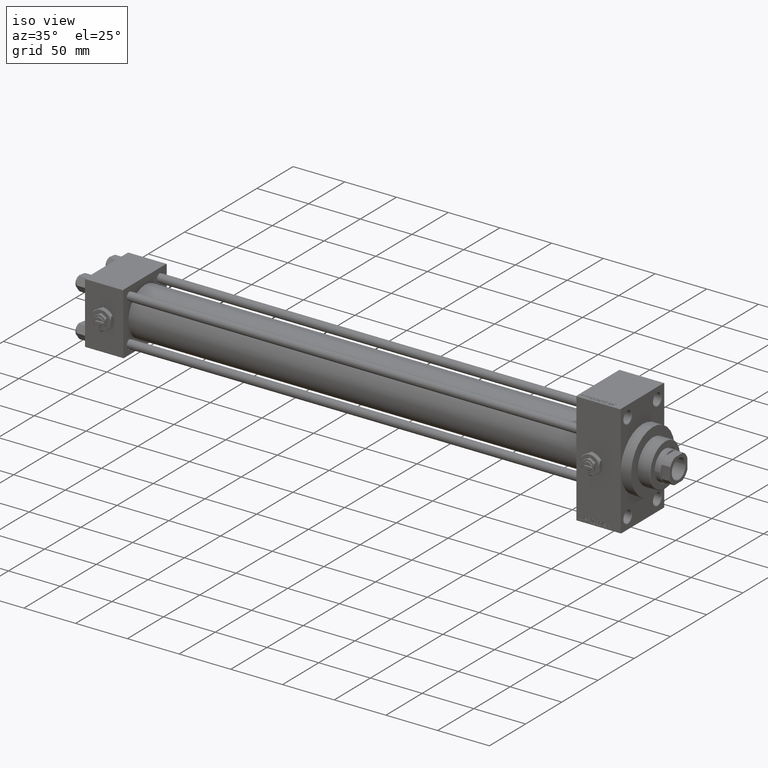
[diagram: clean part render]
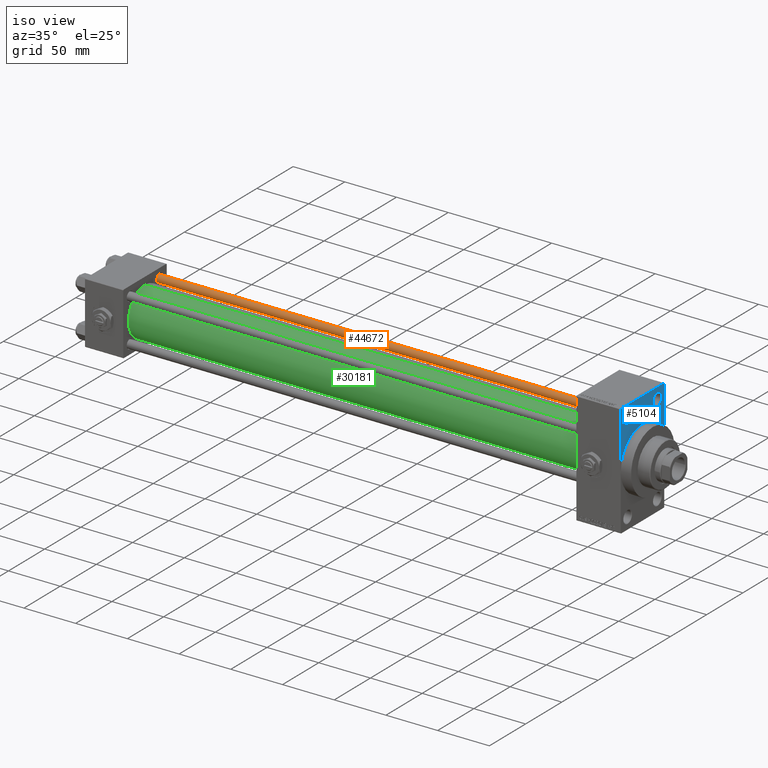
[diagram: same view with three faces highlighted in distinct colors, each labeled with its STEP entity id]
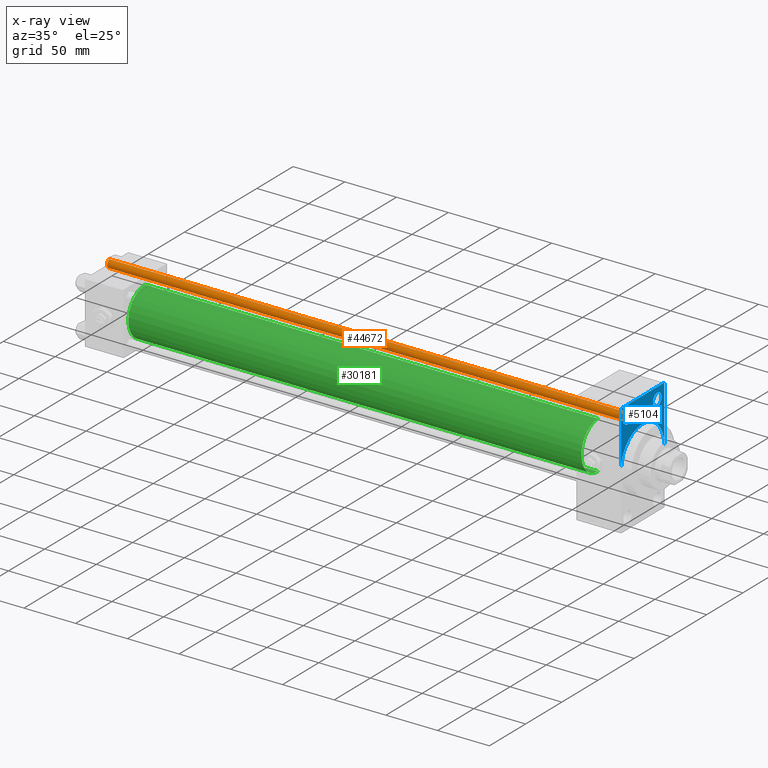
[diagram: x-ray of the same camera — body ghosted, the three highlighted faces saturated]
A machine part, iso view with three faces highlighted in distinct colors.
The next image is the same camera in x-ray (body ghosted, the three faces saturated) — at least one of them is partly hidden behind the body in this view.
Their STEP definitions:

[orange] entity #44672 — the highlighted cylindrical surface (edge-blend (fillet) strip) has radius 4 mm, axis along (-1, -0, 0).
#453 = CARTESIAN_POINT ( 'NONE',  ( 0.000000000000000000, 0.000000000000000000, 501.4999999999999432 ) ) ;
#1155 = ORIENTED_EDGE ( 'NONE', *, *, #11094, .F. ) ;
#3367 = ORIENTED_EDGE ( 'NONE', *, *, #47779, .T. ) ;
#4430 = ORIENTED_EDGE ( 'NONE', *, *, #23448, .T. ) ;
#5130 = CIRCLE ( 'NONE', #18663, 4.000000000000000000 ) ;
#5184 = FACE_OUTER_BOUND ( 'NONE', #46292, .T. ) ;
#8181 = CARTESIAN_POINT ( 'NONE',  ( 0.000000000000000000, 0.000000000000000000, 0.4999999999999449329 ) ) ;
#10677 = VECTOR ( 'NONE', #45670, 1000.000000000000000 ) ;
#11094 = EDGE_CURVE ( 'NONE', #16995, #34132, #33963, .T. ) ;
#13772 = CARTESIAN_POINT ( 'NONE',  ( -4.000000000000000000, 0.000000000000000000, 501.4999999999999432 ) ) ;
#16173 = CARTESIAN_POINT ( 'NONE',  ( 0.000000000000000000, 0.000000000000000000, 502.0000000000000000 ) ) ;
#16901 = CYLINDRICAL_SURFACE ( 'NONE', #36772, 4.000000000000000000 ) ;
#16995 = VERTEX_POINT ( 'NONE', #27229 ) ;
#17477 = CARTESIAN_POINT ( 'NONE',  ( 4.000000000000000000, 4.898587196589412829E-16, 0.4999999999999449329 ) ) ;
#18045 = VERTEX_POINT ( 'NONE', #13772 ) ;
#18372 = CARTESIAN_POINT ( 'NONE',  ( -4.000000000000000000, 0.000000000000000000, 0.4999999999999449329 ) ) ;
#18663 = AXIS2_PLACEMENT_3D ( 'NONE', #8181, #46049, #49049 ) ;
#22649 = DIRECTION ( 'NONE',  ( 0.000000000000000000, 0.000000000000000000, -1.000000000000000000 ) ) ;
#22982 = CARTESIAN_POINT ( 'NONE',  ( -4.000000000000000000, 0.000000000000000000, 502.0000000000000000 ) ) ;
#23448 = EDGE_CURVE ( 'NONE', #16995, #18045, #41836, .T. ) ;
#23888 = DIRECTION ( 'NONE',  ( -1.000000000000000000, 0.000000000000000000, 0.000000000000000000 ) ) ;
#25994 = LINE ( 'NONE', #22982, #31354 ) ;
#26974 = CARTESIAN_POINT ( 'NONE',  ( 4.000000000000000000, 4.898587196589412829E-16, 502.0000000000000000 ) ) ;
#27229 = CARTESIAN_POINT ( 'NONE',  ( 4.000000000000000000, 4.898587196589412829E-16, 501.4999999999999432 ) ) ;
#27486 = AXIS2_PLACEMENT_3D ( 'NONE', #453, #22649, #45326 ) ;
#31354 = VECTOR ( 'NONE', #38177, 1000.000000000000000 ) ;
#31748 = ORIENTED_EDGE ( 'NONE', *, *, #46112, .T. ) ;
#33963 = LINE ( 'NONE', #26974, #10677 ) ;
#34132 = VERTEX_POINT ( 'NONE', #17477 ) ;
#35590 = DIRECTION ( 'NONE',  ( -0.000000000000000000, -0.000000000000000000, -1.000000000000000000 ) ) ;
#36772 = AXIS2_PLACEMENT_3D ( 'NONE', #16173, #35590, #23888 ) ;
#38177 = DIRECTION ( 'NONE',  ( -0.000000000000000000, -0.000000000000000000, -1.000000000000000000 ) ) ;
#39154 = VERTEX_POINT ( 'NONE', #18372 ) ;
#41836 = CIRCLE ( 'NONE', #27486, 4.000000000000000000 ) ;
#44672 = ADVANCED_FACE ( 'NONE', ( #5184 ), #16901, .T. ) ;
#45326 = DIRECTION ( 'NONE',  ( 1.000000000000000000, 0.000000000000000000, 0.000000000000000000 ) ) ;
#45670 = DIRECTION ( 'NONE',  ( -0.000000000000000000, -0.000000000000000000, -1.000000000000000000 ) ) ;
#46049 = DIRECTION ( 'NONE',  ( -0.000000000000000000, -0.000000000000000000, 1.000000000000000000 ) ) ;
#46112 = EDGE_CURVE ( 'NONE', #18045, #39154, #25994, .T. ) ;
#46292 = EDGE_LOOP ( 'NONE', ( #1155, #4430, #31748, #3367 ) ) ;
#47779 = EDGE_CURVE ( 'NONE', #39154, #34132, #5130, .T. ) ;
#49049 = DIRECTION ( 'NONE',  ( 1.000000000000000000, 0.000000000000000000, 0.000000000000000000 ) ) ;

[blue] entity #5104 — the highlighted planar face has unit normal (-1, 0, 0).
#154 = DIRECTION ( 'NONE',  ( 0.000000000000000000, 0.000000000000000000, 1.000000000000000000 ) ) ;
#936 = DIRECTION ( 'NONE',  ( -1.000000000000000000, 0.000000000000000000, -0.000000000000000000 ) ) ;
#1030 = ORIENTED_EDGE ( 'NONE', *, *, #7105, .T. ) ;
#2245 = VERTEX_POINT ( 'NONE', #28666 ) ;
#2514 = CARTESIAN_POINT ( 'NONE',  ( 518.0000000000000000, -30.00000000000000000, 0.000000000000000000 ) ) ;
#3067 = VERTEX_POINT ( 'NONE', #13725 ) ;
#3077 = CARTESIAN_POINT ( 'NONE',  ( 518.0000000000000000, 29.99999999999999645, 54.49999999999999289 ) ) ;
#4241 = VERTEX_POINT ( 'NONE', #35560 ) ;
#4811 = AXIS2_PLACEMENT_3D ( 'NONE', #7801, #10810, #30465 ) ;
#5104 = ADVANCED_FACE ( 'NONE', ( #11672, #42071, #26868 ), #23381, .F. ) ;
#5264 = LINE ( 'NONE', #43132, #7505 ) ;
#5436 = ORIENTED_EDGE ( 'NONE', *, *, #45401, .T. ) ;
#5440 = LINE ( 'NONE', #47300, #28835 ) ;
#5602 = LINE ( 'NONE', #20799, #17931 ) ;
#6318 = CARTESIAN_POINT ( 'NONE',  ( 518.0000000000000000, 29.99999999999999645, 53.99999999999999289 ) ) ;
#7105 = EDGE_CURVE ( 'NONE', #34220, #33696, #13838, .T. ) ;
#7426 = EDGE_CURVE ( 'NONE', #36538, #4241, #33712, .T. ) ;
#7505 = VECTOR ( 'NONE', #20948, 1000.000000000000000 ) ;
#7801 = CARTESIAN_POINT ( 'NONE',  ( 518.0000000000000000, -20.50000000000000000, 43.50000000000000000 ) ) ;
#7917 = EDGE_LOOP ( 'NONE', ( #1030, #37943 ) ) ;
#7935 = DIRECTION ( 'NONE',  ( -1.000000000000000000, 0.000000000000000000, -0.000000000000000000 ) ) ;
#8124 = CARTESIAN_POINT ( 'NONE',  ( 518.0000000000000000, 29.49999999999993960, 54.49999999999999289 ) ) ;
#9437 = ORIENTED_EDGE ( 'NONE', *, *, #28456, .T. ) ;
#9944 = ORIENTED_EDGE ( 'NONE', *, *, #7426, .T. ) ;
#10645 = AXIS2_PLACEMENT_3D ( 'NONE', #39571, #936, #46549 ) ;
#10810 = DIRECTION ( 'NONE',  ( -1.000000000000000000, 0.000000000000000000, -0.000000000000000000 ) ) ;
#11632 = VECTOR ( 'NONE', #32493, 1000.000000000000000 ) ;
#11672 = FACE_BOUND ( 'NONE', #7917, .T. ) ;
#12228 = AXIS2_PLACEMENT_3D ( 'NONE', #32027, #21049, #20800 ) ;
#12352 = EDGE_CURVE ( 'NONE', #33825, #3067, #5264, .T. ) ;
#13204 = DIRECTION ( 'NONE',  ( 0.000000000000000000, 0.000000000000000000, -1.000000000000000000 ) ) ;
#13277 = AXIS2_PLACEMENT_3D ( 'NONE', #45769, #41787, #154 ) ;
#13619 = ORIENTED_EDGE ( 'NONE', *, *, #26449, .T. ) ;
#13725 = CARTESIAN_POINT ( 'NONE',  ( 518.0000000000000000, 30.00000000000000000, 0.000000000000000000 ) ) ;
#13838 = CIRCLE ( 'NONE', #10645, 5.999999999999950262 ) ;
#14866 = VECTOR ( 'NONE', #46001, 1000.000000000000000 ) ;
#15071 = DIRECTION ( 'NONE',  ( 0.000000000000000000, 0.000000000000000000, -1.000000000000000000 ) ) ;
#15665 = ORIENTED_EDGE ( 'NONE', *, *, #37235, .F. ) ;
#16208 = CARTESIAN_POINT ( 'NONE',  ( 518.0000000000000000, 0.000000000000000000, 0.000000000000000000 ) ) ;
#17306 = LINE ( 'NONE', #3077, #11632 ) ;
#17621 = EDGE_CURVE ( 'NONE', #33825, #22488, #23327, .T. ) ;
#17931 = VECTOR ( 'NONE', #28778, 1000.000000000000000 ) ;
#20799 = CARTESIAN_POINT ( 'NONE',  ( 518.0000000000000000, -30.00000000000000000, 54.00000000000000000 ) ) ;
#20800 = DIRECTION ( 'NONE',  ( 0.000000000000000000, 0.000000000000000000, 1.000000000000000000 ) ) ;
#20948 = DIRECTION ( 'NONE',  ( 0.000000000000000000, 0.000000000000000000, -1.000000000000000000 ) ) ;
#21049 = DIRECTION ( 'NONE',  ( -1.000000000000000000, 0.000000000000000000, -0.000000000000000000 ) ) ;
#21131 = DIRECTION ( 'NONE',  ( 0.000000000000000000, 0.000000000000000000, -1.000000000000000000 ) ) ;
#22488 = VERTEX_POINT ( 'NONE', #28648 ) ;
#23119 = CIRCLE ( 'NONE', #26320, 30.00000000000000000 ) ;
#23327 = LINE ( 'NONE', #8124, #14866 ) ;
#23381 = PLANE ( 'NONE',  #24075 ) ;
#23868 = AXIS2_PLACEMENT_3D ( 'NONE', #29795, #34009, #15071 ) ;
#24075 = AXIS2_PLACEMENT_3D ( 'NONE', #48804, #7935, #38332 ) ;
#24696 = CARTESIAN_POINT ( 'NONE',  ( 518.0000000000000000, -29.49999999999994671, 54.50000000000000000 ) ) ;
#26320 = AXIS2_PLACEMENT_3D ( 'NONE', #16208, #35868, #13204 ) ;
#26449 = EDGE_CURVE ( 'NONE', #4241, #36538, #34757, .T. ) ;
#26868 = FACE_OUTER_BOUND ( 'NONE', #38090, .T. ) ;
#28456 = EDGE_CURVE ( 'NONE', #22488, #34017, #17306, .T. ) ;
#28648 = CARTESIAN_POINT ( 'NONE',  ( 518.0000000000000000, 29.49999999999993960, 54.49999999999999289 ) ) ;
#28666 = CARTESIAN_POINT ( 'NONE',  ( 518.0000000000000000, -30.00000000000000000, 54.00000000000000000 ) ) ;
#28778 = DIRECTION ( 'NONE',  ( -0.000000000000000000, -0.7071067811865843211, -0.7071067811865108244 ) ) ;
#28835 = VECTOR ( 'NONE', #21131, 1000.000000000000000 ) ;
#29795 = CARTESIAN_POINT ( 'NONE',  ( 518.0000000000000000, 0.000000000000000000, 0.000000000000000000 ) ) ;
#29970 = CARTESIAN_POINT ( 'NONE',  ( 518.0000000000000000, 20.50000000000000000, 37.50000000000004974 ) ) ;
#30465 = DIRECTION ( 'NONE',  ( 0.000000000000000000, 0.000000000000000000, 1.000000000000000000 ) ) ;
#32027 = CARTESIAN_POINT ( 'NONE',  ( 518.0000000000000000, 20.50000000000000000, 43.50000000000000000 ) ) ;
#32153 = EDGE_LOOP ( 'NONE', ( #9944, #13619 ) ) ;
#32493 = DIRECTION ( 'NONE',  ( 0.000000000000000000, -1.000000000000000000, 1.156482317317871478E-16 ) ) ;
#33696 = VERTEX_POINT ( 'NONE', #39466 ) ;
#33712 = CIRCLE ( 'NONE', #12228, 5.999999999999950262 ) ;
#33825 = VERTEX_POINT ( 'NONE', #6318 ) ;
#34009 = DIRECTION ( 'NONE',  ( 1.000000000000000000, 0.000000000000000000, 0.000000000000000000 ) ) ;
#34017 = VERTEX_POINT ( 'NONE', #24696 ) ;
#34220 = VERTEX_POINT ( 'NONE', #41861 ) ;
#34757 = CIRCLE ( 'NONE', #13277, 5.999999999999950262 ) ;
#35064 = VERTEX_POINT ( 'NONE', #2514 ) ;
#35560 = CARTESIAN_POINT ( 'NONE',  ( 518.0000000000000000, 20.50000000000000000, 49.49999999999995026 ) ) ;
#35868 = DIRECTION ( 'NONE',  ( 1.000000000000000000, 0.000000000000000000, 0.000000000000000000 ) ) ;
#36538 = VERTEX_POINT ( 'NONE', #29970 ) ;
#37235 = EDGE_CURVE ( 'NONE', #40950, #35064, #49322, .T. ) ;
#37943 = ORIENTED_EDGE ( 'NONE', *, *, #42449, .T. ) ;
#38090 = EDGE_LOOP ( 'NONE', ( #9437, #44673, #5436, #15665, #38499, #46492, #47751 ) ) ;
#38332 = DIRECTION ( 'NONE',  ( -0.000000000000000000, 0.000000000000000000, 1.000000000000000000 ) ) ;
#38499 = ORIENTED_EDGE ( 'NONE', *, *, #38776, .F. ) ;
#38776 = EDGE_CURVE ( 'NONE', #3067, #40950, #23119, .T. ) ;
#39466 = CARTESIAN_POINT ( 'NONE',  ( 518.0000000000000000, -20.50000000000000000, 49.49999999999995026 ) ) ;
#39571 = CARTESIAN_POINT ( 'NONE',  ( 518.0000000000000000, -20.50000000000000000, 43.50000000000000000 ) ) ;
#39864 = CIRCLE ( 'NONE', #4811, 5.999999999999950262 ) ;
#40950 = VERTEX_POINT ( 'NONE', #42883 ) ;
#41787 = DIRECTION ( 'NONE',  ( -1.000000000000000000, 0.000000000000000000, -0.000000000000000000 ) ) ;
#41861 = CARTESIAN_POINT ( 'NONE',  ( 518.0000000000000000, -20.50000000000000000, 37.50000000000004974 ) ) ;
#42071 = FACE_BOUND ( 'NONE', #32153, .T. ) ;
#42449 = EDGE_CURVE ( 'NONE', #33696, #34220, #39864, .T. ) ;
#42883 = CARTESIAN_POINT ( 'NONE',  ( 518.0000000000000000, 0.000000000000000000, 30.00000000000000000 ) ) ;
#43132 = CARTESIAN_POINT ( 'NONE',  ( 518.0000000000000000, 29.99999999999999645, 54.49999999999999289 ) ) ;
#44673 = ORIENTED_EDGE ( 'NONE', *, *, #49113, .T. ) ;
#45401 = EDGE_CURVE ( 'NONE', #2245, #35064, #5440, .T. ) ;
#45769 = CARTESIAN_POINT ( 'NONE',  ( 518.0000000000000000, 20.50000000000000000, 43.50000000000000000 ) ) ;
#46001 = DIRECTION ( 'NONE',  ( 0.000000000000000000, -0.7071067811865867636, 0.7071067811865081598 ) ) ;
#46492 = ORIENTED_EDGE ( 'NONE', *, *, #12352, .F. ) ;
#46549 = DIRECTION ( 'NONE',  ( 0.000000000000000000, 0.000000000000000000, 1.000000000000000000 ) ) ;
#47300 = CARTESIAN_POINT ( 'NONE',  ( 518.0000000000000000, -30.00000000000000000, 54.50000000000000000 ) ) ;
#47751 = ORIENTED_EDGE ( 'NONE', *, *, #17621, .T. ) ;
#48804 = CARTESIAN_POINT ( 'NONE',  ( 518.0000000000000000, 0.000000000000000000, 0.000000000000000000 ) ) ;
#49113 = EDGE_CURVE ( 'NONE', #34017, #2245, #5602, .T. ) ;
#49322 = CIRCLE ( 'NONE', #23868, 30.00000000000000000 ) ;

[green] entity #30181 — the highlighted cylindrical surface (edge-blend (fillet) strip) has radius 23 mm, axis along (-1, -0, -0).
#874 = CARTESIAN_POINT ( 'NONE',  ( 36.99999999999997868, -2.602085213965210642E-15, 23.00000000000000000 ) ) ;
#1624 = EDGE_CURVE ( 'NONE', #41237, #16137, #16042, .T. ) ;
#5330 = EDGE_CURVE ( 'NONE', #41237, #22931, #10392, .T. ) ;
#7222 = CIRCLE ( 'NONE', #35065, 23.00000000000000000 ) ;
#7405 = VECTOR ( 'NONE', #47524, 1000.000000000000000 ) ;
#8046 = CARTESIAN_POINT ( 'NONE',  ( 475.0000000000000000, 2.146024240737016609E-16, -23.00000000000000000 ) ) ;
#8070 = EDGE_CURVE ( 'NONE', #16137, #17756, #47594, .T. ) ;
#8247 = EDGE_LOOP ( 'NONE', ( #15718, #35727, #8994, #35916 ) ) ;
#8857 = CARTESIAN_POINT ( 'NONE',  ( 36.99999999999997868, 2.146024240737016609E-16, -23.00000000000000000 ) ) ;
#8994 = ORIENTED_EDGE ( 'NONE', *, *, #5330, .T. ) ;
#9053 = VECTOR ( 'NONE', #43601, 1000.000000000000000 ) ;
#9228 = CARTESIAN_POINT ( 'NONE',  ( 475.0000000000000000, 2.146024240737016609E-16, -23.00000000000000000 ) ) ;
#10193 = FACE_OUTER_BOUND ( 'NONE', #8247, .T. ) ;
#10392 = LINE ( 'NONE', #14380, #7405 ) ;
#13346 = DIRECTION ( 'NONE',  ( 1.000000000000000000, 0.000000000000000000, 0.000000000000000000 ) ) ;
#13932 = CARTESIAN_POINT ( 'NONE',  ( 475.0000000000000000, -2.602085213965210642E-15, 0.000000000000000000 ) ) ;
#14380 = CARTESIAN_POINT ( 'NONE',  ( 475.0000000000000000, -2.602085213965210642E-15, 23.00000000000000000 ) ) ;
#14879 = AXIS2_PLACEMENT_3D ( 'NONE', #13932, #40346, #25397 ) ;
#14920 = DIRECTION ( 'NONE',  ( 0.000000000000000000, 0.000000000000000000, 1.000000000000000000 ) ) ;
#15718 = ORIENTED_EDGE ( 'NONE', *, *, #8070, .F. ) ;
#16042 = CIRCLE ( 'NONE', #47047, 23.00000000000000000 ) ;
#16137 = VERTEX_POINT ( 'NONE', #8046 ) ;
#17088 = CARTESIAN_POINT ( 'NONE',  ( 475.0000000000000000, -2.602085213965210642E-15, 0.000000000000000000 ) ) ;
#17183 = CYLINDRICAL_SURFACE ( 'NONE', #14879, 23.00000000000000000 ) ;
#17756 = VERTEX_POINT ( 'NONE', #8857 ) ;
#22931 = VERTEX_POINT ( 'NONE', #874 ) ;
#24569 = CARTESIAN_POINT ( 'NONE',  ( 475.0000000000000000, -2.602085213965210642E-15, 23.00000000000000000 ) ) ;
#25397 = DIRECTION ( 'NONE',  ( 0.000000000000000000, 0.000000000000000000, 1.000000000000000000 ) ) ;
#26142 = DIRECTION ( 'NONE',  ( 1.000000000000000000, -0.000000000000000000, 0.000000000000000000 ) ) ;
#28291 = DIRECTION ( 'NONE',  ( 0.000000000000000000, 0.000000000000000000, -1.000000000000000000 ) ) ;
#29874 = CARTESIAN_POINT ( 'NONE',  ( 36.99999999999997868, -2.602085213965210642E-15, 0.000000000000000000 ) ) ;
#30181 = ADVANCED_FACE ( 'NONE', ( #10193 ), #17183, .T. ) ;
#35065 = AXIS2_PLACEMENT_3D ( 'NONE', #29874, #26142, #14920 ) ;
#35727 = ORIENTED_EDGE ( 'NONE', *, *, #1624, .F. ) ;
#35916 = ORIENTED_EDGE ( 'NONE', *, *, #38104, .T. ) ;
#38104 = EDGE_CURVE ( 'NONE', #22931, #17756, #7222, .T. ) ;
#40346 = DIRECTION ( 'NONE',  ( -1.000000000000000000, -0.000000000000000000, -0.000000000000000000 ) ) ;
#41237 = VERTEX_POINT ( 'NONE', #24569 ) ;
#43601 = DIRECTION ( 'NONE',  ( -1.000000000000000000, -0.000000000000000000, -0.000000000000000000 ) ) ;
#47047 = AXIS2_PLACEMENT_3D ( 'NONE', #17088, #13346, #28291 ) ;
#47524 = DIRECTION ( 'NONE',  ( -1.000000000000000000, -0.000000000000000000, -0.000000000000000000 ) ) ;
#47594 = LINE ( 'NONE', #9228, #9053 ) ;